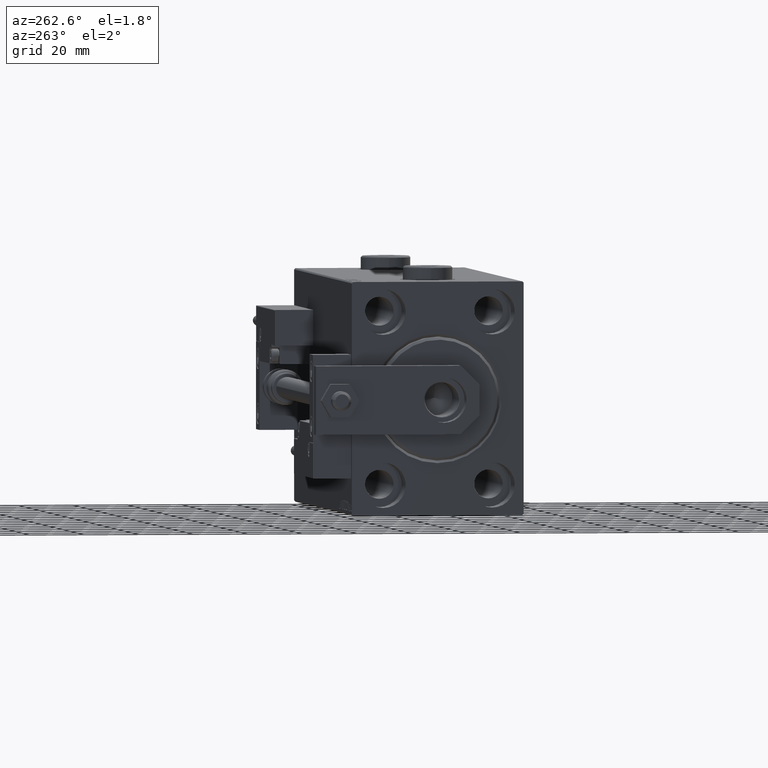
[diagram: clean part render]
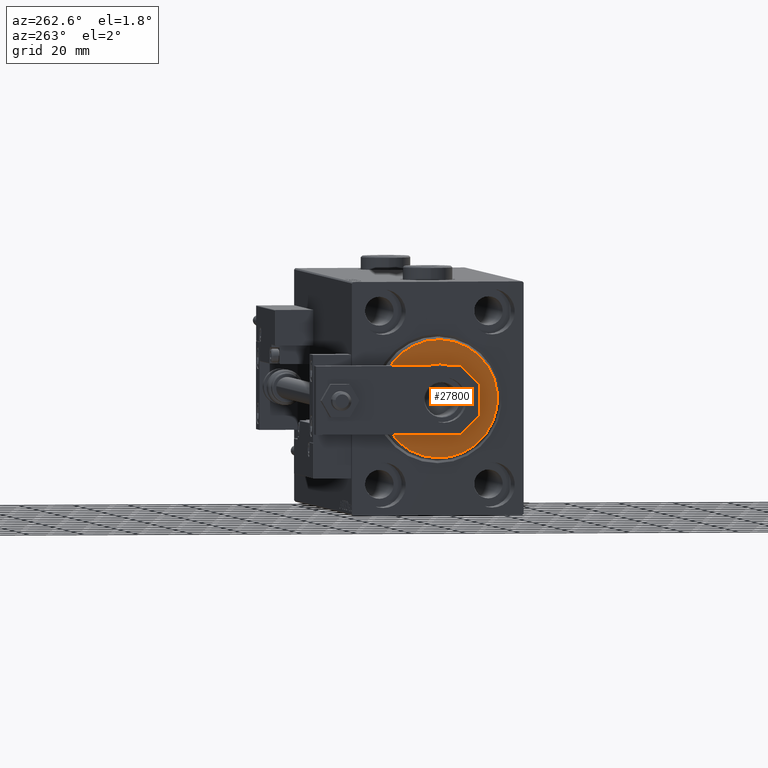
[diagram: same view with one face highlighted and labeled with its STEP entity id]
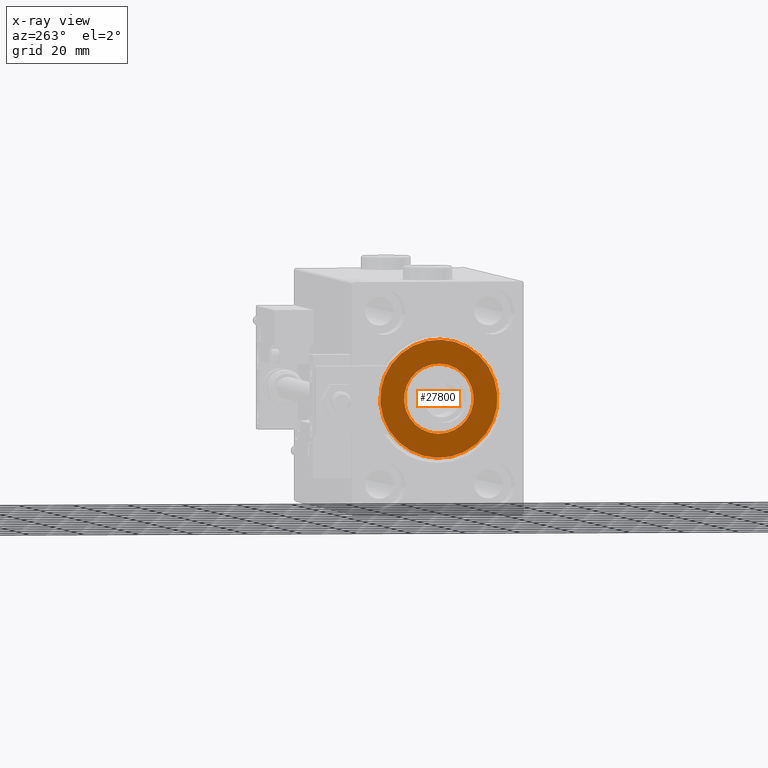
[diagram: x-ray of the same camera — body ghosted, the highlighted face saturated]
A machine part, auxiliary view. The second image highlights one B-rep face of the part: STEP entity #27800.
The next image is the same camera in x-ray: the body ghosted, the highlighted face saturated — about 0% of this face is hidden behind the body in this view.
In plain terms, the highlighted planar face has unit normal (-1, 0, 0).
Its self-contained STEP definition (entity closure, byte-faithful):
#61 = VERTEX_POINT ( 'NONE', #19215 ) ;
#291 = DIRECTION ( 'NONE',  ( 0.000000000000000000, 0.000000000000000000, -1.000000000000000000 ) ) ;
#1535 = EDGE_CURVE ( 'NONE', #48407, #48113, #5798, .T. ) ;
#5798 = CIRCLE ( 'NONE', #40689, 21.50000000000000355 ) ;
#8591 = DIRECTION ( 'NONE',  ( 0.000000000000000000, 0.000000000000000000, -1.000000000000000000 ) ) ;
#8663 = VERTEX_POINT ( 'NONE', #41577 ) ;
#10120 = CIRCLE ( 'NONE', #23456, 12.75000000000000000 ) ;
#11754 = DIRECTION ( 'NONE',  ( -1.000000000000000000, 0.000000000000000000, -0.000000000000000000 ) ) ;
#13087 = CIRCLE ( 'NONE', #42230, 21.50000000000000355 ) ;
#13932 = ORIENTED_EDGE ( 'NONE', *, *, #23335, .T. ) ;
#15652 = DIRECTION ( 'NONE',  ( 1.000000000000000000, -0.000000000000000000, 0.000000000000000000 ) ) ;
#18906 = EDGE_LOOP ( 'NONE', ( #43106, #49686 ) ) ;
#19215 = CARTESIAN_POINT ( 'NONE',  ( 3.000000000000000000, 0.000000000000000000, 12.75000000000000000 ) ) ;
#20114 = DIRECTION ( 'NONE',  ( -1.000000000000000000, 0.000000000000000000, -0.000000000000000000 ) ) ;
#20594 = PLANE ( 'NONE',  #49072 ) ;
#21696 = CARTESIAN_POINT ( 'NONE',  ( 3.000000000000000000, 0.000000000000000000, 21.50000000000000355 ) ) ;
#23335 = EDGE_CURVE ( 'NONE', #48113, #48407, #13087, .T. ) ;
#23456 = AXIS2_PLACEMENT_3D ( 'NONE', #24560, #20114, #32633 ) ;
#24508 = DIRECTION ( 'NONE',  ( 1.000000000000000000, -0.000000000000000000, 0.000000000000000000 ) ) ;
#24560 = CARTESIAN_POINT ( 'NONE',  ( 3.000000000000000000, 0.000000000000000000, 0.000000000000000000 ) ) ;
#27800 = ADVANCED_FACE ( 'NONE', ( #32326, #44076 ), #20594, .T. ) ;
#30411 = EDGE_CURVE ( 'NONE', #61, #8663, #44297, .T. ) ;
#30784 = DIRECTION ( 'NONE',  ( 0.000000000000000000, 0.000000000000000000, -1.000000000000000000 ) ) ;
#32326 = FACE_OUTER_BOUND ( 'NONE', #40411, .T. ) ;
#32633 = DIRECTION ( 'NONE',  ( 0.000000000000000000, 0.000000000000000000, -1.000000000000000000 ) ) ;
#39410 = CARTESIAN_POINT ( 'NONE',  ( 3.000000000000000000, 2.694222958124177598E-15, -21.50000000000000355 ) ) ;
#39865 = EDGE_CURVE ( 'NONE', #8663, #61, #10120, .T. ) ;
#39941 = DIRECTION ( 'NONE',  ( 1.000000000000000000, -0.000000000000000000, 0.000000000000000000 ) ) ;
#40411 = EDGE_LOOP ( 'NONE', ( #13932, #51491 ) ) ;
#40689 = AXIS2_PLACEMENT_3D ( 'NONE', #44387, #39941, #40981 ) ;
#40924 = CARTESIAN_POINT ( 'NONE',  ( 3.000000000000000000, 0.000000000000000000, 0.000000000000000000 ) ) ;
#40981 = DIRECTION ( 'NONE',  ( 0.000000000000000000, 0.000000000000000000, -1.000000000000000000 ) ) ;
#41577 = CARTESIAN_POINT ( 'NONE',  ( 3.000000000000000000, 1.561424668912874914E-15, -12.75000000000000000 ) ) ;
#42230 = AXIS2_PLACEMENT_3D ( 'NONE', #46710, #15652, #30784 ) ;
#43106 = ORIENTED_EDGE ( 'NONE', *, *, #30411, .T. ) ;
#44076 = FACE_BOUND ( 'NONE', #18906, .T. ) ;
#44297 = CIRCLE ( 'NONE', #45925, 12.75000000000000000 ) ;
#44387 = CARTESIAN_POINT ( 'NONE',  ( 3.000000000000000000, 0.000000000000000000, 0.000000000000000000 ) ) ;
#45925 = AXIS2_PLACEMENT_3D ( 'NONE', #47744, #11754, #291 ) ;
#46710 = CARTESIAN_POINT ( 'NONE',  ( 3.000000000000000000, 0.000000000000000000, 0.000000000000000000 ) ) ;
#47744 = CARTESIAN_POINT ( 'NONE',  ( 3.000000000000000000, 0.000000000000000000, 0.000000000000000000 ) ) ;
#48113 = VERTEX_POINT ( 'NONE', #21696 ) ;
#48407 = VERTEX_POINT ( 'NONE', #39410 ) ;
#49072 = AXIS2_PLACEMENT_3D ( 'NONE', #40924, #24508, #8591 ) ;
#49686 = ORIENTED_EDGE ( 'NONE', *, *, #39865, .T. ) ;
#51491 = ORIENTED_EDGE ( 'NONE', *, *, #1535, .T. ) ;